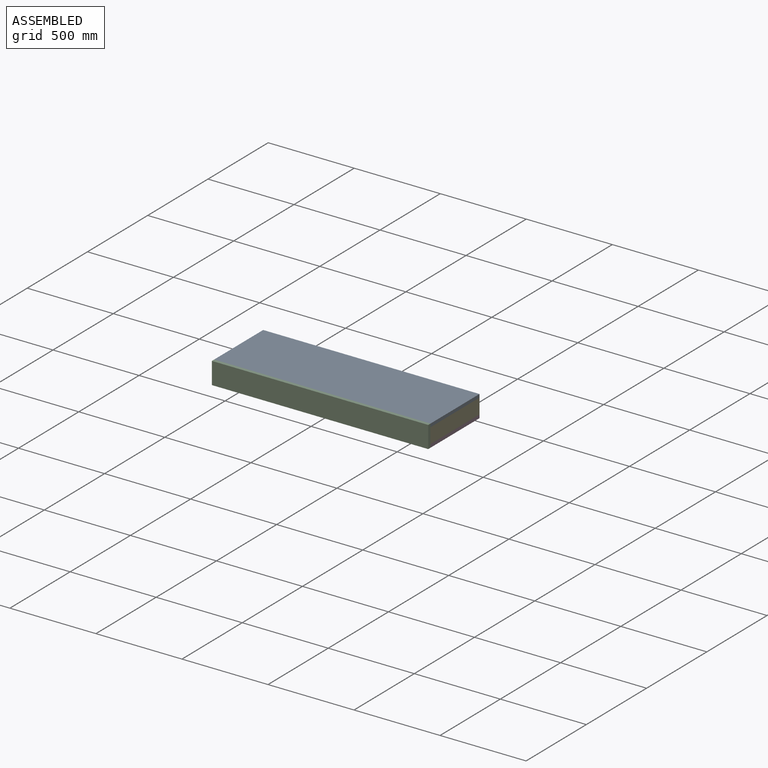
[diagram: assembled view]
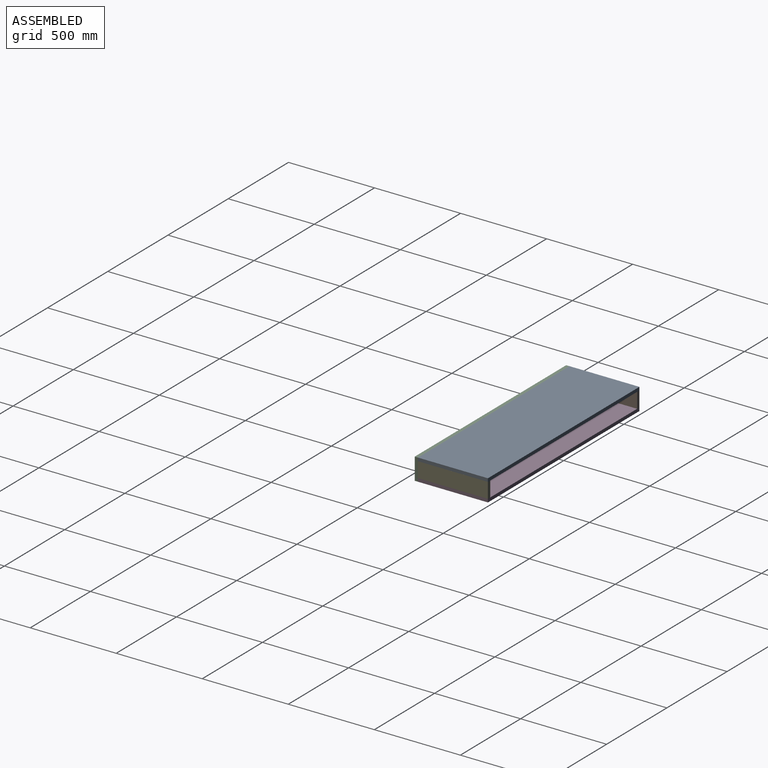
[diagram: assembled view, second angle]
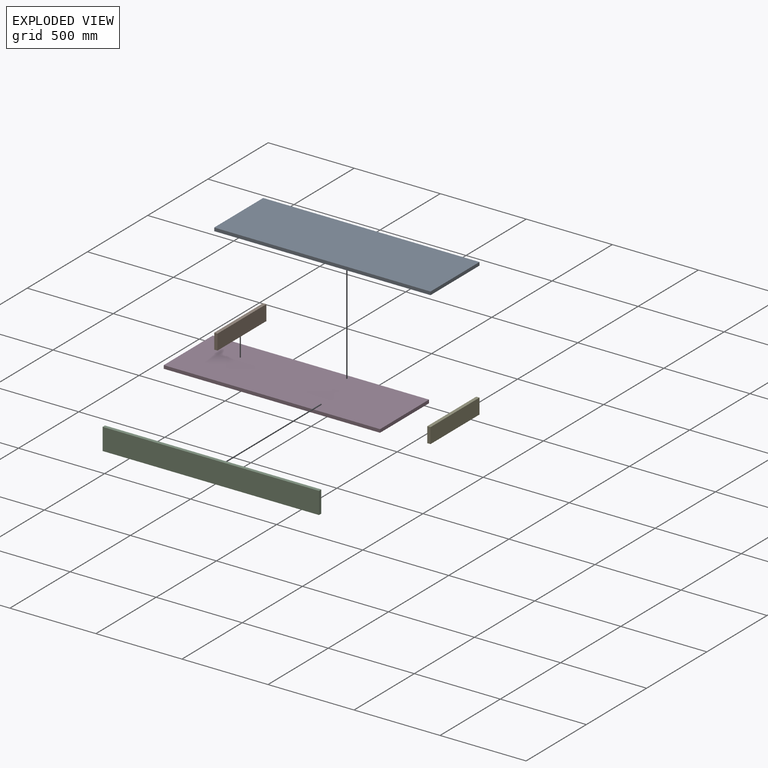
[diagram: exploded view]
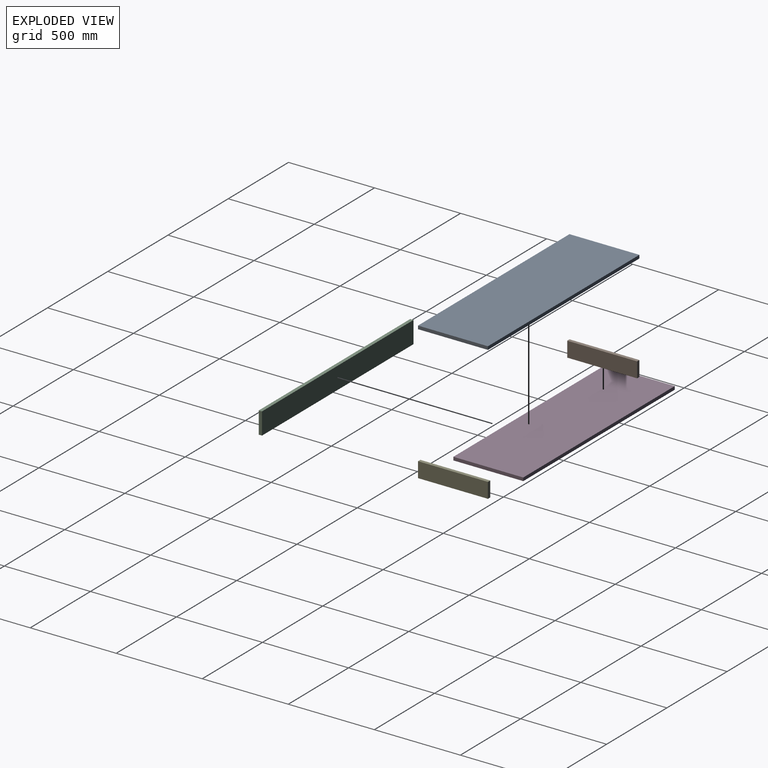
[diagram: exploded view, second angle]
ASSEMBLY  parts=5 mates=3
PART A: 6 faces, bbox 1257.3x406.4x19.1 mm
  f0: plane 1257.3x19.05mm, normal (0,-1,0), area 23951.6mm2, adj f1,f3,f4,f5
  f1: plane 406.4x19.05mm, normal (1,0,0), area 7741.9mm2, adj f0,f2,f4,f5
  f2: plane 1257.3x19.05mm, normal (0,1,0), area 23951.6mm2, adj f1,f3,f4,f5
  f3: plane 406.4x19.05mm, normal (-1,0,0), area 7741.9mm2, adj f0,f2,f4,f5
  f4: plane 1257.3x406.4mm, normal (0,0,1), area 510966.7mm2, adj f0,f1,f2,f3
  f5: plane 1257.3x406.4mm, normal (0,0,-1), area 510966.7mm2, adj f0,f1,f2,f3
PART B: 6 faces, bbox 19.1x406.4x88.9 mm
  f0: plane 88.9x19.05mm, normal (0,1,0), area 1693.5mm2, adj f1,f3,f4,f5
  f1: plane 406.4x19.05mm, normal (0,0,1), area 7741.9mm2, adj f0,f2,f4,f5
  f2: plane 88.9x19.05mm, normal (0,-1,0), area 1693.5mm2, adj f1,f3,f4,f5
  f3: plane 406.4x19.05mm, normal (0,0,-1), area 7741.9mm2, adj f0,f2,f4,f5
  f4: plane 406.4x88.9mm, normal (1,0,0), area 36129mm2, adj f0,f1,f2,f3
  f5: plane 406.4x88.9mm, normal (-1,0,0), area 36129mm2, adj f0,f1,f2,f3
PART C: 6 faces, bbox 1257.3x19.1x127 mm
  f0: plane 1257.3x19.05mm, normal (0,0,-1), area 23951.6mm2, adj f1,f3,f4,f5
  f1: plane 127x19.05mm, normal (1,0,0), area 2419.4mm2, adj f0,f2,f4,f5
  f2: plane 1257.3x19.05mm, normal (0,0,1), area 23951.6mm2, adj f1,f3,f4,f5
  f3: plane 127x19.05mm, normal (-1,0,0), area 2419.4mm2, adj f0,f2,f4,f5
  f4: plane 1257.3x127mm, normal (0,-1,0), area 159677.1mm2, adj f0,f1,f2,f3
  f5: plane 1257.3x127mm, normal (0,1,0), area 159677.1mm2, adj f0,f1,f2,f3
PART D: same geometry as A
PART E: same geometry as B
PLACE A t=(0,-203.2,0)mm
PLACE B t=(-1238.25,-203.2,79.75)mm
PLACE C t=(144.83,-203.2,126.99)mm
PLACE D t=(0,-203.2,-107.95)mm
PLACE E t=(0,-203.2,79.75)mm
MATE fastened C.f5 <-> A.f0  axis (0,1,0) through (-628.65,-406.4,63.5)mm
MATE fastened B.f3 <-> D.f4  axis (0,0,-1) through (-628.65,0,-44.45)mm
MATE fastened E.f3 <-> D.f4  axis (0,0,-1) through (628.65,0,-44.45)mm
